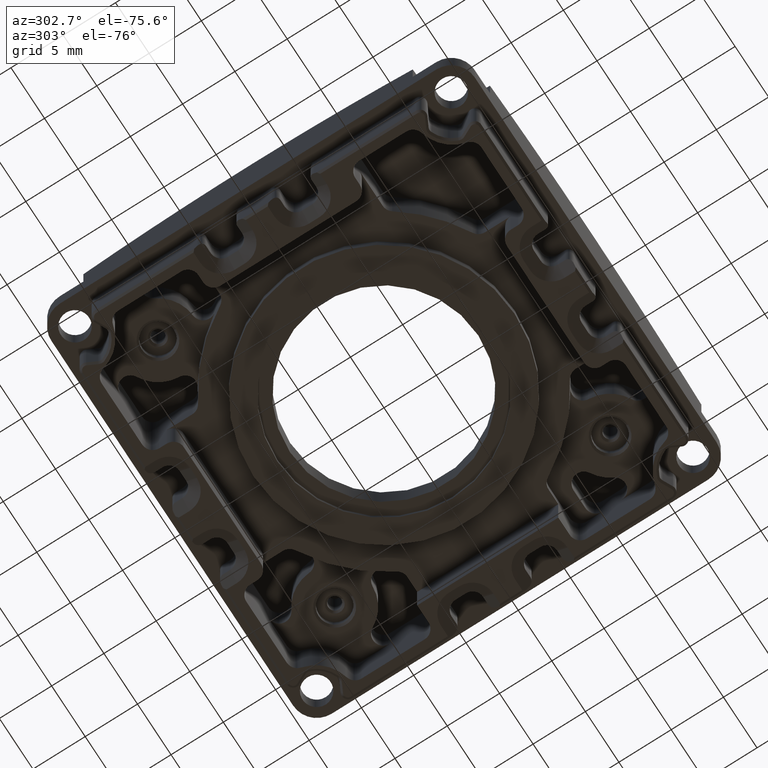
[diagram: clean part render]
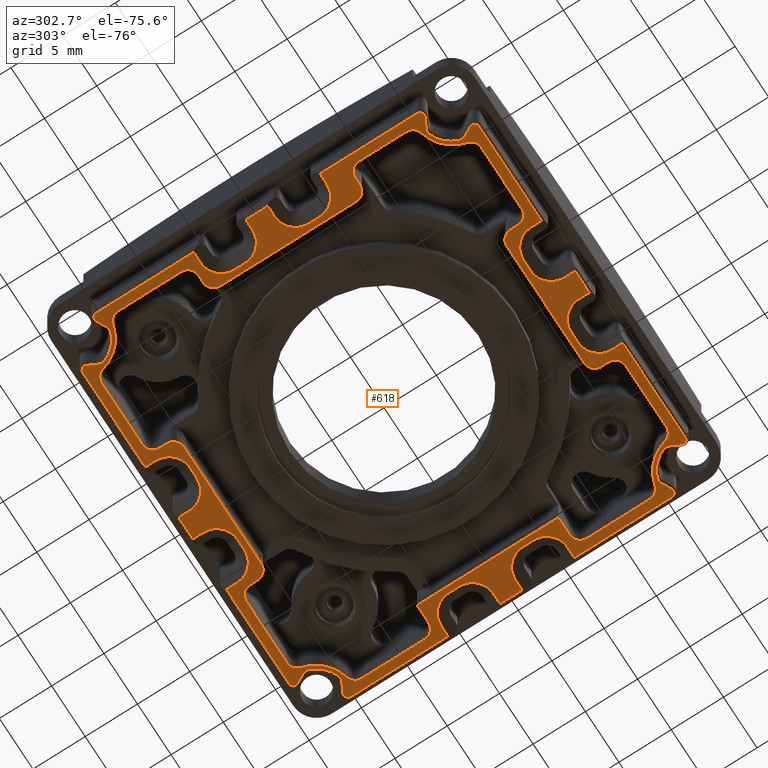
[diagram: same view with one face highlighted and labeled with its STEP entity id]
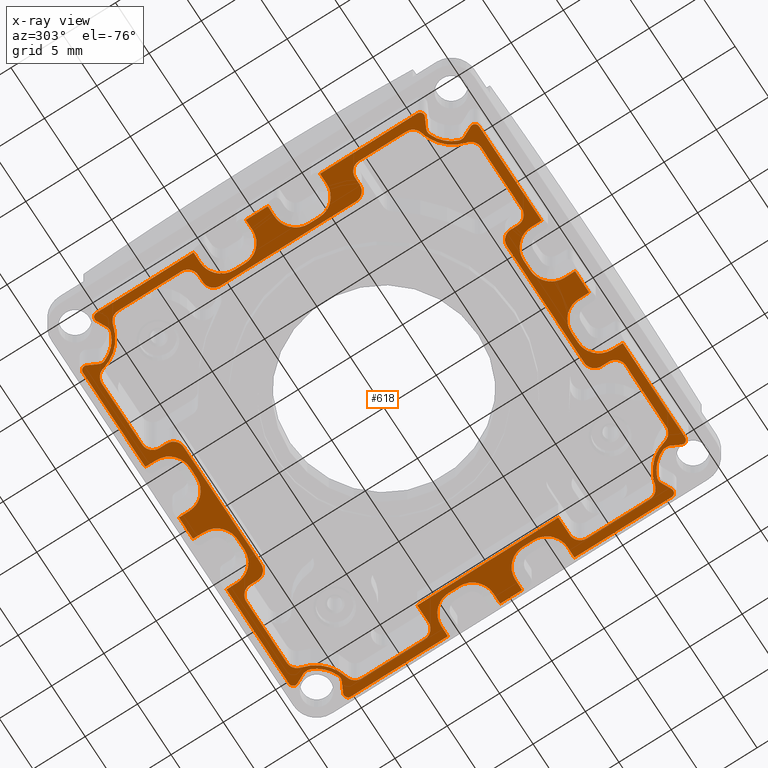
[diagram: x-ray of the same camera — body ghosted, the highlighted face saturated]
A machine part, auxiliary view. The second image highlights one B-rep face of the part: STEP entity #618.
The next image is the same camera in x-ray: the body ghosted, the highlighted face saturated — about 0% of this face is hidden behind the body in this view.
In plain terms, the highlighted planar face has unit normal (0, 0, -1).
Its self-contained STEP definition (entity closure, byte-faithful):
#618=ADVANCED_FACE('',(#1456,#1043),#4143,.T.);
#1043=FACE_OUTER_BOUND('',#1497,.F.);
#1456=FACE_BOUND('',#1496,.F.);
#1496=EDGE_LOOP('',(#2068,#2069,#2070,#2071,#2072,#2073,#2074,#2075,#2076,
#2077,#2078,#2079,#2080,#2081,#2082,#2083,#2084,#2085,#2086,#2087,#2088,
#2089,#2090,#2091,#2092,#2093,#2094,#2095,#2096,#2097,#2098,#2099,#2100,
#2101,#2102,#2103,#2104,#2105,#2106,#2107,#2108,#2109,#2110,#2111,#2112,
#2113));
#1497=EDGE_LOOP('',(#2114,#2115,#2116,#2117,#2118,#2119,#2120,#2121,#2122,
#2123,#2124,#2125,#2126,#2127,#2128,#2129,#2130,#2131,#2132,#2133,#2134,
#2135,#2136,#2137,#2138,#2139,#2140,#2141,#2142,#2143,#2144,#2145,#2146,
#2147,#2148,#2149,#2150,#2151,#2152,#2153,#2154,#2155,#2156,#2157,#2158,
#2159,#2160,#2161,#2162,#2163,#2164,#2165,#2166,#2167,#2168,#2169,#2170,
#2171,#2172,#2173,#2174,#2175,#2176,#2177,#2178,#2179,#2180,#2181,#2182,
#2183,#2184,#2185,#2186,#2187,#2188,#2189,#2190,#2191,#2192,#2193,#2194,
#2195,#2196,#2197,#2198,#2199,#2200,#2201,#2202,#2203,#2204,#2205,#2206,
#2207,#2208,#2209));
#2068=ORIENTED_EDGE('',*,*,#7302,.T.);
#2069=ORIENTED_EDGE('',*,*,#6932,.F.);
#2070=ORIENTED_EDGE('',*,*,#7297,.T.);
#2071=ORIENTED_EDGE('',*,*,#7296,.T.);
#2072=ORIENTED_EDGE('',*,*,#7295,.T.);
#2073=ORIENTED_EDGE('',*,*,#7294,.T.);
#2074=ORIENTED_EDGE('',*,*,#7293,.F.);
#2075=ORIENTED_EDGE('',*,*,#7292,.T.);
#2076=ORIENTED_EDGE('',*,*,#7291,.T.);
#2077=ORIENTED_EDGE('',*,*,#7290,.T.);
#2078=ORIENTED_EDGE('',*,*,#7298,.T.);
#2079=ORIENTED_EDGE('',*,*,#6933,.F.);
#2080=ORIENTED_EDGE('',*,*,#7299,.T.);
#2081=ORIENTED_EDGE('',*,*,#6934,.F.);
#2082=ORIENTED_EDGE('',*,*,#7271,.T.);
#2083=ORIENTED_EDGE('',*,*,#7270,.T.);
#2084=ORIENTED_EDGE('',*,*,#7269,.T.);
#2085=ORIENTED_EDGE('',*,*,#7268,.T.);
#2086=ORIENTED_EDGE('',*,*,#7267,.F.);
#2087=ORIENTED_EDGE('',*,*,#7266,.T.);
#2088=ORIENTED_EDGE('',*,*,#7265,.T.);
#2089=ORIENTED_EDGE('',*,*,#7264,.T.);
#2090=ORIENTED_EDGE('',*,*,#7263,.T.);
#2091=ORIENTED_EDGE('',*,*,#6935,.F.);
#2092=ORIENTED_EDGE('',*,*,#7300,.T.);
#2093=ORIENTED_EDGE('',*,*,#6936,.F.);
#2094=ORIENTED_EDGE('',*,*,#7280,.T.);
#2095=ORIENTED_EDGE('',*,*,#7279,.T.);
#2096=ORIENTED_EDGE('',*,*,#7278,.T.);
#2097=ORIENTED_EDGE('',*,*,#7277,.T.);
#2098=ORIENTED_EDGE('',*,*,#7276,.F.);
#2099=ORIENTED_EDGE('',*,*,#7275,.T.);
#2100=ORIENTED_EDGE('',*,*,#7274,.T.);
#2101=ORIENTED_EDGE('',*,*,#7273,.T.);
#2102=ORIENTED_EDGE('',*,*,#7272,.T.);
#2103=ORIENTED_EDGE('',*,*,#7301,.T.);
#2104=ORIENTED_EDGE('',*,*,#7289,.T.);
#2105=ORIENTED_EDGE('',*,*,#7288,.T.);
#2106=ORIENTED_EDGE('',*,*,#7287,.T.);
#2107=ORIENTED_EDGE('',*,*,#7286,.T.);
#2108=ORIENTED_EDGE('',*,*,#7285,.F.);
#2109=ORIENTED_EDGE('',*,*,#7284,.T.);
#2110=ORIENTED_EDGE('',*,*,#7283,.T.);
#2111=ORIENTED_EDGE('',*,*,#7282,.T.);
#2112=ORIENTED_EDGE('',*,*,#7281,.T.);
#2113=ORIENTED_EDGE('',*,*,#6931,.F.);
#2114=ORIENTED_EDGE('',*,*,#7309,.F.);
#2115=ORIENTED_EDGE('',*,*,#7312,.T.);
#2116=ORIENTED_EDGE('',*,*,#7311,.T.);
#2117=ORIENTED_EDGE('',*,*,#7313,.F.);
#2118=ORIENTED_EDGE('',*,*,#7316,.T.);
#2119=ORIENTED_EDGE('',*,*,#7315,.T.);
#2120=ORIENTED_EDGE('',*,*,#7317,.F.);
#2121=ORIENTED_EDGE('',*,*,#7307,.F.);
#2122=ORIENTED_EDGE('',*,*,#7319,.F.);
#2123=ORIENTED_EDGE('',*,*,#7322,.T.);
#2124=ORIENTED_EDGE('',*,*,#7321,.T.);
#2125=ORIENTED_EDGE('',*,*,#7323,.F.);
#2126=ORIENTED_EDGE('',*,*,#7326,.T.);
#2127=ORIENTED_EDGE('',*,*,#7325,.T.);
#2128=ORIENTED_EDGE('',*,*,#7327,.F.);
#2129=ORIENTED_EDGE('',*,*,#7189,.F.);
#2130=ORIENTED_EDGE('',*,*,#7191,.F.);
#2131=ORIENTED_EDGE('',*,*,#7193,.F.);
#2132=ORIENTED_EDGE('',*,*,#7195,.T.);
#2133=ORIENTED_EDGE('',*,*,#7197,.T.);
#2134=ORIENTED_EDGE('',*,*,#7199,.T.);
#2135=ORIENTED_EDGE('',*,*,#7201,.F.);
#2136=ORIENTED_EDGE('',*,*,#7203,.F.);
#2137=ORIENTED_EDGE('',*,*,#7205,.F.);
#2138=ORIENTED_EDGE('',*,*,#7329,.F.);
#2139=ORIENTED_EDGE('',*,*,#7332,.T.);
#2140=ORIENTED_EDGE('',*,*,#7331,.T.);
#2141=ORIENTED_EDGE('',*,*,#7333,.F.);
#2142=ORIENTED_EDGE('',*,*,#7336,.T.);
#2143=ORIENTED_EDGE('',*,*,#7335,.T.);
#2144=ORIENTED_EDGE('',*,*,#7337,.F.);
#2145=ORIENTED_EDGE('',*,*,#7303,.F.);
#2146=ORIENTED_EDGE('',*,*,#7339,.F.);
#2147=ORIENTED_EDGE('',*,*,#7342,.T.);
#2148=ORIENTED_EDGE('',*,*,#7341,.T.);
#2149=ORIENTED_EDGE('',*,*,#7343,.F.);
#2150=ORIENTED_EDGE('',*,*,#7346,.T.);
#2151=ORIENTED_EDGE('',*,*,#7345,.T.);
#2152=ORIENTED_EDGE('',*,*,#7347,.F.);
#2153=ORIENTED_EDGE('',*,*,#7207,.F.);
#2154=ORIENTED_EDGE('',*,*,#7209,.F.);
#2155=ORIENTED_EDGE('',*,*,#7211,.F.);
#2156=ORIENTED_EDGE('',*,*,#7213,.T.);
#2157=ORIENTED_EDGE('',*,*,#7215,.T.);
#2158=ORIENTED_EDGE('',*,*,#7217,.T.);
#2159=ORIENTED_EDGE('',*,*,#7219,.F.);
#2160=ORIENTED_EDGE('',*,*,#7221,.F.);
#2161=ORIENTED_EDGE('',*,*,#7223,.F.);
#2162=ORIENTED_EDGE('',*,*,#7359,.F.);
#2163=ORIENTED_EDGE('',*,*,#7362,.T.);
#2164=ORIENTED_EDGE('',*,*,#7361,.T.);
#2165=ORIENTED_EDGE('',*,*,#7363,.F.);
#2166=ORIENTED_EDGE('',*,*,#7366,.T.);
#2167=ORIENTED_EDGE('',*,*,#7365,.T.);
#2168=ORIENTED_EDGE('',*,*,#7367,.F.);
#2169=ORIENTED_EDGE('',*,*,#7305,.F.);
#2170=ORIENTED_EDGE('',*,*,#7349,.F.);
#2171=ORIENTED_EDGE('',*,*,#7352,.T.);
#2172=ORIENTED_EDGE('',*,*,#7351,.T.);
#2173=ORIENTED_EDGE('',*,*,#7353,.F.);
#2174=ORIENTED_EDGE('',*,*,#7356,.T.);
#2175=ORIENTED_EDGE('',*,*,#7355,.T.);
#2176=ORIENTED_EDGE('',*,*,#7357,.F.);
#2177=ORIENTED_EDGE('',*,*,#7245,.F.);
#2178=ORIENTED_EDGE('',*,*,#7247,.F.);
#2179=ORIENTED_EDGE('',*,*,#7249,.F.);
#2180=ORIENTED_EDGE('',*,*,#7251,.T.);
#2181=ORIENTED_EDGE('',*,*,#7253,.T.);
#2182=ORIENTED_EDGE('',*,*,#7255,.T.);
#2183=ORIENTED_EDGE('',*,*,#7257,.F.);
#2184=ORIENTED_EDGE('',*,*,#7259,.F.);
#2185=ORIENTED_EDGE('',*,*,#7261,.F.);
#2186=ORIENTED_EDGE('',*,*,#7369,.F.);
#2187=ORIENTED_EDGE('',*,*,#7372,.T.);
#2188=ORIENTED_EDGE('',*,*,#7371,.T.);
#2189=ORIENTED_EDGE('',*,*,#7373,.F.);
#2190=ORIENTED_EDGE('',*,*,#7376,.T.);
#2191=ORIENTED_EDGE('',*,*,#7375,.T.);
#2192=ORIENTED_EDGE('',*,*,#7377,.F.);
#2193=ORIENTED_EDGE('',*,*,#7243,.F.);
#2194=ORIENTED_EDGE('',*,*,#7379,.F.);
#2195=ORIENTED_EDGE('',*,*,#7382,.T.);
#2196=ORIENTED_EDGE('',*,*,#7381,.T.);
#2197=ORIENTED_EDGE('',*,*,#7383,.F.);
#2198=ORIENTED_EDGE('',*,*,#7386,.T.);
#2199=ORIENTED_EDGE('',*,*,#7385,.T.);
#2200=ORIENTED_EDGE('',*,*,#7387,.F.);
#2201=ORIENTED_EDGE('',*,*,#7225,.F.);
#2202=ORIENTED_EDGE('',*,*,#7227,.F.);
#2203=ORIENTED_EDGE('',*,*,#7229,.F.);
#2204=ORIENTED_EDGE('',*,*,#7231,.T.);
#2205=ORIENTED_EDGE('',*,*,#7233,.T.);
#2206=ORIENTED_EDGE('',*,*,#7235,.T.);
#2207=ORIENTED_EDGE('',*,*,#7237,.F.);
#2208=ORIENTED_EDGE('',*,*,#7239,.F.);
#2209=ORIENTED_EDGE('',*,*,#7241,.F.);
#4143=PLANE('',#10503);
#6539=CIRCLE('',#10108,1.);
#6540=CIRCLE('',#10109,1.);
#6541=CIRCLE('',#10110,1.);
#6542=CIRCLE('',#10111,1.);
#6543=CIRCLE('',#10112,1.);
#6544=CIRCLE('',#10113,1.);
#6642=CIRCLE('',#10211,0.400000000000003);
#6644=CIRCLE('',#10213,0.699999999999996);
#6646=CIRCLE('',#10215,2.95000000000001);
#6648=CIRCLE('',#10217,0.7);
#6650=CIRCLE('',#10219,0.400000000000001);
#6652=CIRCLE('',#10221,0.400000000000001);
#6654=CIRCLE('',#10223,0.699999999999999);
#6656=CIRCLE('',#10225,2.95000000000001);
#6658=CIRCLE('',#10227,0.700000000000004);
#6660=CIRCLE('',#10229,0.399999999999991);
#6662=CIRCLE('',#10231,0.399999999999989);
#6664=CIRCLE('',#10233,0.7);
#6666=CIRCLE('',#10235,2.94999999999984);
#6668=CIRCLE('',#10237,0.700000000000009);
#6670=CIRCLE('',#10239,0.400000000000008);
#6672=CIRCLE('',#10241,0.399999999999992);
#6674=CIRCLE('',#10243,0.699999999999985);
#6676=CIRCLE('',#10245,2.95000000000001);
#6678=CIRCLE('',#10247,0.700000000000003);
#6680=CIRCLE('',#10249,0.399999999999985);
#6682=CIRCLE('',#10251,1.);
#6683=CIRCLE('',#10252,1.);
#6684=CIRCLE('',#10253,3.59999999999998);
#6685=CIRCLE('',#10254,0.999999999999976);
#6686=CIRCLE('',#10255,1.);
#6687=CIRCLE('',#10256,1.);
#6688=CIRCLE('',#10257,1.);
#6689=CIRCLE('',#10258,3.59999999999996);
#6690=CIRCLE('',#10259,0.999999999999979);
#6691=CIRCLE('',#10260,1.);
#6692=CIRCLE('',#10261,1.);
#6693=CIRCLE('',#10262,1.);
#6694=CIRCLE('',#10263,3.60000000000001);
#6695=CIRCLE('',#10264,0.999999999999976);
#6696=CIRCLE('',#10265,1.);
#6697=CIRCLE('',#10266,1.);
#6698=CIRCLE('',#10267,1.);
#6699=CIRCLE('',#10268,3.59999999999999);
#6700=CIRCLE('',#10269,0.999999999999979);
#6701=CIRCLE('',#10270,1.);
#6702=CIRCLE('',#10271,2.);
#6703=CIRCLE('',#10272,2.);
#6704=CIRCLE('',#10273,2.);
#6705=CIRCLE('',#10274,2.);
#6706=CIRCLE('',#10275,2.);
#6707=CIRCLE('',#10276,2.);
#6708=CIRCLE('',#10277,2.);
#6709=CIRCLE('',#10278,2.);
#6710=CIRCLE('',#10279,2.);
#6711=CIRCLE('',#10280,2.);
#6712=CIRCLE('',#10281,2.);
#6713=CIRCLE('',#10282,2.);
#6714=CIRCLE('',#10283,2.);
#6715=CIRCLE('',#10284,2.);
#6716=CIRCLE('',#10285,2.);
#6717=CIRCLE('',#10286,2.);
#6718=CIRCLE('',#10287,2.);
#6719=CIRCLE('',#10288,2.);
#6720=CIRCLE('',#10289,2.);
#6721=CIRCLE('',#10290,2.);
#6722=CIRCLE('',#10291,2.);
#6723=CIRCLE('',#10292,2.);
#6724=CIRCLE('',#10293,2.);
#6725=CIRCLE('',#10294,2.);
#6726=CIRCLE('',#10295,2.);
#6727=CIRCLE('',#10296,2.);
#6728=CIRCLE('',#10297,2.);
#6729=CIRCLE('',#10298,2.);
#6730=CIRCLE('',#10299,2.);
#6731=CIRCLE('',#10300,2.);
#6732=CIRCLE('',#10301,2.);
#6733=CIRCLE('',#10302,2.);
#6931=EDGE_CURVE('',#10050,#10049,#6539,.T.);
#6932=EDGE_CURVE('',#10048,#10047,#6540,.T.);
#6933=EDGE_CURVE('',#10046,#10045,#6541,.T.);
#6934=EDGE_CURVE('',#10044,#10043,#6542,.T.);
#6935=EDGE_CURVE('',#10042,#10041,#6543,.T.);
#6936=EDGE_CURVE('',#10040,#10039,#6544,.T.);
#7189=EDGE_CURVE('',#9774,#10074,#8140,.T.);
#7191=EDGE_CURVE('',#9772,#9774,#6642,.T.);
#7193=EDGE_CURVE('',#9770,#9772,#8142,.T.);
#7195=EDGE_CURVE('',#9770,#9768,#6644,.T.);
#7197=EDGE_CURVE('',#9768,#9766,#6646,.T.);
#7199=EDGE_CURVE('',#9766,#9764,#6648,.T.);
#7201=EDGE_CURVE('',#9762,#9764,#8144,.T.);
#7203=EDGE_CURVE('',#9760,#9762,#6650,.T.);
#7205=EDGE_CURVE('',#10071,#9760,#8146,.T.);
#7207=EDGE_CURVE('',#9758,#10070,#8148,.T.);
#7209=EDGE_CURVE('',#9756,#9758,#6652,.T.);
#7211=EDGE_CURVE('',#9754,#9756,#8150,.T.);
#7213=EDGE_CURVE('',#9754,#9752,#6654,.T.);
#7215=EDGE_CURVE('',#9752,#9750,#6656,.T.);
#7217=EDGE_CURVE('',#9750,#9748,#6658,.T.);
#7219=EDGE_CURVE('',#9746,#9748,#8152,.T.);
#7221=EDGE_CURVE('',#9744,#9746,#6660,.T.);
#7223=EDGE_CURVE('',#10067,#9744,#8154,.T.);
#7225=EDGE_CURVE('',#9742,#10064,#8156,.T.);
#7227=EDGE_CURVE('',#9740,#9742,#6662,.T.);
#7229=EDGE_CURVE('',#9738,#9740,#8158,.T.);
#7231=EDGE_CURVE('',#9738,#9736,#6664,.T.);
#7233=EDGE_CURVE('',#9736,#9734,#6666,.T.);
#7235=EDGE_CURVE('',#9734,#9732,#6668,.T.);
#7237=EDGE_CURVE('',#9730,#9732,#8160,.T.);
#7239=EDGE_CURVE('',#9728,#9730,#6670,.T.);
#7241=EDGE_CURVE('',#10065,#9728,#8162,.T.);
#7243=EDGE_CURVE('',#10059,#10062,#8164,.T.);
#7245=EDGE_CURVE('',#9726,#10058,#8166,.T.);
#7247=EDGE_CURVE('',#9724,#9726,#6672,.T.);
#7249=EDGE_CURVE('',#9722,#9724,#8168,.T.);
#7251=EDGE_CURVE('',#9722,#9720,#6674,.T.);
#7253=EDGE_CURVE('',#9720,#9718,#6676,.T.);
#7255=EDGE_CURVE('',#9718,#9716,#6678,.T.);
#7257=EDGE_CURVE('',#9714,#9716,#8170,.T.);
#7259=EDGE_CURVE('',#9712,#9714,#6680,.T.);
#7261=EDGE_CURVE('',#10055,#9712,#8172,.T.);
#7263=EDGE_CURVE('',#9710,#10041,#8174,.T.);
#7264=EDGE_CURVE('',#9709,#9710,#6682,.T.);
#7265=EDGE_CURVE('',#9708,#9709,#8175,.T.);
#7266=EDGE_CURVE('',#9707,#9708,#6683,.T.);
#7267=EDGE_CURVE('',#9707,#9706,#6684,.T.);
#7268=EDGE_CURVE('',#9705,#9706,#6685,.T.);
#7269=EDGE_CURVE('',#9704,#9705,#8176,.T.);
#7270=EDGE_CURVE('',#9703,#9704,#6686,.T.);
#7271=EDGE_CURVE('',#10044,#9703,#8177,.T.);
#7272=EDGE_CURVE('',#9702,#9991,#8178,.T.);
#7273=EDGE_CURVE('',#9701,#9702,#6687,.T.);
#7274=EDGE_CURVE('',#9700,#9701,#8179,.T.);
#7275=EDGE_CURVE('',#9699,#9700,#6688,.T.);
#7276=EDGE_CURVE('',#9699,#9698,#6689,.T.);
#7277=EDGE_CURVE('',#9697,#9698,#6690,.T.);
#7278=EDGE_CURVE('',#9696,#9697,#8180,.T.);
#7279=EDGE_CURVE('',#9695,#9696,#6691,.T.);
#7280=EDGE_CURVE('',#10040,#9695,#8181,.T.);
#7281=EDGE_CURVE('',#9694,#10049,#8182,.T.);
#7282=EDGE_CURVE('',#9693,#9694,#6692,.T.);
#7283=EDGE_CURVE('',#9692,#9693,#8183,.T.);
#7284=EDGE_CURVE('',#9691,#9692,#6693,.T.);
#7285=EDGE_CURVE('',#9691,#9690,#6694,.T.);
#7286=EDGE_CURVE('',#9689,#9690,#6695,.T.);
#7287=EDGE_CURVE('',#9688,#9689,#8184,.T.);
#7288=EDGE_CURVE('',#9687,#9688,#6696,.T.);
#7289=EDGE_CURVE('',#9975,#9687,#8185,.T.);
#7290=EDGE_CURVE('',#9686,#9685,#6697,.T.);
#7291=EDGE_CURVE('',#9684,#9686,#8186,.T.);
#7292=EDGE_CURVE('',#9683,#9684,#6698,.T.);
#7293=EDGE_CURVE('',#9683,#9682,#6699,.T.);
#7294=EDGE_CURVE('',#9681,#9682,#6700,.T.);
#7295=EDGE_CURVE('',#9680,#9681,#8187,.T.);
#7296=EDGE_CURVE('',#9679,#9680,#6701,.T.);
#7297=EDGE_CURVE('',#10048,#9679,#8188,.T.);
#7298=EDGE_CURVE('',#9685,#10045,#8189,.T.);
#7299=EDGE_CURVE('',#10046,#10043,#8190,.T.);
#7300=EDGE_CURVE('',#10042,#10039,#8191,.T.);
#7301=EDGE_CURVE('',#9991,#9975,#8192,.T.);
#7302=EDGE_CURVE('',#10050,#10047,#8193,.T.);
#7303=EDGE_CURVE('',#9935,#9938,#8194,.T.);
#7305=EDGE_CURVE('',#9933,#9932,#8196,.T.);
#7307=EDGE_CURVE('',#9927,#9930,#8198,.T.);
#7309=EDGE_CURVE('',#9678,#10065,#8200,.T.);
#7311=EDGE_CURVE('',#9676,#9675,#6702,.T.);
#7312=EDGE_CURVE('',#9678,#9676,#6703,.T.);
#7313=EDGE_CURVE('',#9674,#9675,#8202,.T.);
#7315=EDGE_CURVE('',#9671,#9670,#6704,.T.);
#7316=EDGE_CURVE('',#9674,#9671,#6705,.T.);
#7317=EDGE_CURVE('',#9930,#9670,#8204,.T.);
#7319=EDGE_CURVE('',#9668,#9927,#8206,.T.);
#7321=EDGE_CURVE('',#9666,#9665,#6706,.T.);
#7322=EDGE_CURVE('',#9668,#9666,#6707,.T.);
#7323=EDGE_CURVE('',#9664,#9665,#8208,.T.);
#7325=EDGE_CURVE('',#9661,#9660,#6708,.T.);
#7326=EDGE_CURVE('',#9664,#9661,#6709,.T.);
#7327=EDGE_CURVE('',#10074,#9660,#8210,.T.);
#7329=EDGE_CURVE('',#9658,#10071,#8212,.T.);
#7331=EDGE_CURVE('',#9656,#9655,#6710,.T.);
#7332=EDGE_CURVE('',#9658,#9656,#6711,.T.);
#7333=EDGE_CURVE('',#9654,#9655,#8214,.T.);
#7335=EDGE_CURVE('',#9651,#9650,#6712,.T.);
#7336=EDGE_CURVE('',#9654,#9651,#6713,.T.);
#7337=EDGE_CURVE('',#9938,#9650,#8216,.T.);
#7339=EDGE_CURVE('',#9648,#9935,#8218,.T.);
#7341=EDGE_CURVE('',#9646,#9645,#6714,.T.);
#7342=EDGE_CURVE('',#9648,#9646,#6715,.T.);
#7343=EDGE_CURVE('',#9644,#9645,#8220,.T.);
#7345=EDGE_CURVE('',#9641,#9640,#6716,.T.);
#7346=EDGE_CURVE('',#9644,#9641,#6717,.T.);
#7347=EDGE_CURVE('',#10070,#9640,#8222,.T.);
#7349=EDGE_CURVE('',#9638,#9933,#8224,.T.);
#7351=EDGE_CURVE('',#9636,#9635,#6718,.T.);
#7352=EDGE_CURVE('',#9638,#9636,#6719,.T.);
#7353=EDGE_CURVE('',#9634,#9635,#8226,.T.);
#7355=EDGE_CURVE('',#9631,#9630,#6720,.T.);
#7356=EDGE_CURVE('',#9634,#9631,#6721,.T.);
#7357=EDGE_CURVE('',#10058,#9630,#8228,.T.);
#7359=EDGE_CURVE('',#9628,#10067,#8230,.T.);
#7361=EDGE_CURVE('',#9626,#9625,#6722,.T.);
#7362=EDGE_CURVE('',#9628,#9626,#6723,.T.);
#7363=EDGE_CURVE('',#9624,#9625,#8232,.T.);
#7365=EDGE_CURVE('',#9621,#9620,#6724,.T.);
#7366=EDGE_CURVE('',#9624,#9621,#6725,.T.);
#7367=EDGE_CURVE('',#9932,#9620,#8234,.T.);
#7369=EDGE_CURVE('',#9618,#10055,#8236,.T.);
#7371=EDGE_CURVE('',#9616,#9615,#6726,.T.);
#7372=EDGE_CURVE('',#9618,#9616,#6727,.T.);
#7373=EDGE_CURVE('',#9614,#9615,#8238,.T.);
#7375=EDGE_CURVE('',#9611,#9610,#6728,.T.);
#7376=EDGE_CURVE('',#9614,#9611,#6729,.T.);
#7377=EDGE_CURVE('',#10062,#9610,#8240,.T.);
#7379=EDGE_CURVE('',#9608,#10059,#8242,.T.);
#7381=EDGE_CURVE('',#9606,#9605,#6730,.T.);
#7382=EDGE_CURVE('',#9608,#9606,#6731,.T.);
#7383=EDGE_CURVE('',#9604,#9605,#8244,.T.);
#7385=EDGE_CURVE('',#9601,#9600,#6732,.T.);
#7386=EDGE_CURVE('',#9604,#9601,#6733,.T.);
#7387=EDGE_CURVE('',#10064,#9600,#8246,.T.);
#8140=LINE('',#14549,#8816);
#8142=LINE('',#14553,#8818);
#8144=LINE('',#14561,#8820);
#8146=LINE('',#14565,#8822);
#8148=LINE('',#14567,#8824);
#8150=LINE('',#14571,#8826);
#8152=LINE('',#14579,#8828);
#8154=LINE('',#14583,#8830);
#8156=LINE('',#14585,#8832);
#8158=LINE('',#14589,#8834);
#8160=LINE('',#14597,#8836);
#8162=LINE('',#14601,#8838);
#8164=LINE('',#14603,#8840);
#8166=LINE('',#14605,#8842);
#8168=LINE('',#14609,#8844);
#8170=LINE('',#14617,#8846);
#8172=LINE('',#14621,#8848);
#8174=LINE('',#14623,#8850);
#8175=LINE('',#14625,#8851);
#8176=LINE('',#14629,#8852);
#8177=LINE('',#14631,#8853);
#8178=LINE('',#14632,#8854);
#8179=LINE('',#14634,#8855);
#8180=LINE('',#14638,#8856);
#8181=LINE('',#14640,#8857);
#8182=LINE('',#14641,#8858);
#8183=LINE('',#14643,#8859);
#8184=LINE('',#14647,#8860);
#8185=LINE('',#14649,#8861);
#8186=LINE('',#14651,#8862);
#8187=LINE('',#14655,#8863);
#8188=LINE('',#14657,#8864);
#8189=LINE('',#14658,#8865);
#8190=LINE('',#14659,#8866);
#8191=LINE('',#14660,#8867);
#8192=LINE('',#14661,#8868);
#8193=LINE('',#14662,#8869);
#8194=LINE('',#14663,#8870);
#8196=LINE('',#14665,#8872);
#8198=LINE('',#14667,#8874);
#8200=LINE('',#14669,#8876);
#8202=LINE('',#14673,#8878);
#8204=LINE('',#14677,#8880);
#8206=LINE('',#14679,#8882);
#8208=LINE('',#14683,#8884);
#8210=LINE('',#14687,#8886);
#8212=LINE('',#14689,#8888);
#8214=LINE('',#14693,#8890);
#8216=LINE('',#14697,#8892);
#8218=LINE('',#14699,#8894);
#8220=LINE('',#14703,#8896);
#8222=LINE('',#14707,#8898);
#8224=LINE('',#14709,#8900);
#8226=LINE('',#14713,#8902);
#8228=LINE('',#14717,#8904);
#8230=LINE('',#14719,#8906);
#8232=LINE('',#14723,#8908);
#8234=LINE('',#14727,#8910);
#8236=LINE('',#14729,#8912);
#8238=LINE('',#14733,#8914);
#8240=LINE('',#14737,#8916);
#8242=LINE('',#14739,#8918);
#8244=LINE('',#14743,#8920);
#8246=LINE('',#14747,#8922);
#8816=VECTOR('',#11246,9.30267434322743);
#8818=VECTOR('',#11252,0.97267966461553);
#8820=VECTOR('',#11266,0.972676440001319);
#8822=VECTOR('',#11272,9.30267559193981);
#8824=VECTOR('',#11274,9.30266774657838);
#8826=VECTOR('',#11280,0.972680123974665);
#8828=VECTOR('',#11294,0.972676440015015);
#8830=VECTOR('',#11300,9.30267597342437);
#8832=VECTOR('',#11302,9.30267351013232);
#8834=VECTOR('',#11308,0.972680583032126);
#8836=VECTOR('',#11322,0.972676439801598);
#8838=VECTOR('',#11328,9.30267536401269);
#8840=VECTOR('',#11330,2.10000025288196);
#8842=VECTOR('',#11332,9.30267414455527);
#8844=VECTOR('',#11338,0.972679664596222);
#8846=VECTOR('',#11352,0.972676440019943);
#8848=VECTOR('',#11358,9.30266952803468);
#8850=VECTOR('',#11360,0.699996302263017);
#8851=VECTOR('',#11363,6.03345796620374);
#8852=VECTOR('',#11370,6.03345044536141);
#8853=VECTOR('',#11373,0.700000140915748);
#8854=VECTOR('',#11374,1.70000014091537);
#8855=VECTOR('',#11377,6.03345044536141);
#8856=VECTOR('',#11384,6.03345796620374);
#8857=VECTOR('',#11387,0.699996302263187);
#8858=VECTOR('',#11388,0.699996302263134);
#8859=VECTOR('',#11391,6.03345796620374);
#8860=VECTOR('',#11398,6.03345044536141);
#8861=VECTOR('',#11401,1.70000014091538);
#8862=VECTOR('',#11404,4.53345783833197);
#8863=VECTOR('',#11411,6.03345796620374);
#8864=VECTOR('',#11414,0.699996302263262);
#8865=VECTOR('',#11415,0.700000140909125);
#8866=VECTOR('',#11416,12.9999997471424);
#8867=VECTOR('',#11417,11.4999997757606);
#8868=VECTOR('',#11418,13.5000071401054);
#8869=VECTOR('',#11419,11.4999997757597);
#8870=VECTOR('',#11420,2.09999974713246);
#8872=VECTOR('',#11422,2.09999974716234);
#8874=VECTOR('',#11424,2.09999974714513);
#8876=VECTOR('',#11426,1.00000000032655);
#8878=VECTOR('',#11432,1.00000000000834);
#8880=VECTOR('',#11438,1.00000000024625);
#8882=VECTOR('',#11440,1.00000000024763);
#8884=VECTOR('',#11446,1.00000000001612);
#8886=VECTOR('',#11452,1.00000000027258);
#8888=VECTOR('',#11454,1.00000000216465);
#8890=VECTOR('',#11460,0.999999999980929);
#8892=VECTOR('',#11466,1.00000000221623);
#8894=VECTOR('',#11468,0.999999997099987);
#8896=VECTOR('',#11474,0.999999999994035);
#8898=VECTOR('',#11480,0.999999997105451);
#8900=VECTOR('',#11482,0.999992603788094);
#8902=VECTOR('',#11488,1.00000000000508);
#8904=VECTOR('',#11494,0.999992603921356);
#8906=VECTOR('',#11496,0.999992603958642);
#8908=VECTOR('',#11502,1.00000000000565);
#8910=VECTOR('',#11508,0.999992603937187);
#8912=VECTOR('',#11510,1.00000000296018);
#8914=VECTOR('',#11516,1.00000000001811);
#8916=VECTOR('',#11522,1.00000000290495);
#8918=VECTOR('',#11524,0.999999997747999);
#8920=VECTOR('',#11530,1.00000000003163);
#8922=VECTOR('',#11536,0.999999997781657);
#9600=VERTEX_POINT('',#13436);
#9601=VERTEX_POINT('',#13437);
#9604=VERTEX_POINT('',#13440);
#9605=VERTEX_POINT('',#13441);
#9606=VERTEX_POINT('',#13442);
#9608=VERTEX_POINT('',#13444);
#9610=VERTEX_POINT('',#13446);
#9611=VERTEX_POINT('',#13447);
#9614=VERTEX_POINT('',#13450);
#9615=VERTEX_POINT('',#13451);
#9616=VERTEX_POINT('',#13452);
#9618=VERTEX_POINT('',#13454);
#9620=VERTEX_POINT('',#13456);
#9621=VERTEX_POINT('',#13457);
#9624=VERTEX_POINT('',#13460);
#9625=VERTEX_POINT('',#13461);
#9626=VERTEX_POINT('',#13462);
#9628=VERTEX_POINT('',#13464);
#9630=VERTEX_POINT('',#13466);
#9631=VERTEX_POINT('',#13467);
#9634=VERTEX_POINT('',#13470);
#9635=VERTEX_POINT('',#13471);
#9636=VERTEX_POINT('',#13472);
#9638=VERTEX_POINT('',#13474);
#9640=VERTEX_POINT('',#13476);
#9641=VERTEX_POINT('',#13477);
#9644=VERTEX_POINT('',#13480);
#9645=VERTEX_POINT('',#13481);
#9646=VERTEX_POINT('',#13482);
#9648=VERTEX_POINT('',#13484);
#9650=VERTEX_POINT('',#13486);
#9651=VERTEX_POINT('',#13487);
#9654=VERTEX_POINT('',#13490);
#9655=VERTEX_POINT('',#13491);
#9656=VERTEX_POINT('',#13492);
#9658=VERTEX_POINT('',#13494);
#9660=VERTEX_POINT('',#13496);
#9661=VERTEX_POINT('',#13497);
#9664=VERTEX_POINT('',#13500);
#9665=VERTEX_POINT('',#13501);
#9666=VERTEX_POINT('',#13502);
#9668=VERTEX_POINT('',#13504);
#9670=VERTEX_POINT('',#13506);
#9671=VERTEX_POINT('',#13507);
#9674=VERTEX_POINT('',#13510);
#9675=VERTEX_POINT('',#13511);
#9676=VERTEX_POINT('',#13512);
#9678=VERTEX_POINT('',#13514);
#9679=VERTEX_POINT('',#13515);
#9680=VERTEX_POINT('',#13516);
#9681=VERTEX_POINT('',#13517);
#9682=VERTEX_POINT('',#13518);
#9683=VERTEX_POINT('',#13519);
#9684=VERTEX_POINT('',#13520);
#9685=VERTEX_POINT('',#13521);
#9686=VERTEX_POINT('',#13522);
#9687=VERTEX_POINT('',#13523);
#9688=VERTEX_POINT('',#13524);
#9689=VERTEX_POINT('',#13525);
#9690=VERTEX_POINT('',#13526);
#9691=VERTEX_POINT('',#13527);
#9692=VERTEX_POINT('',#13528);
#9693=VERTEX_POINT('',#13529);
#9694=VERTEX_POINT('',#13530);
#9695=VERTEX_POINT('',#13531);
#9696=VERTEX_POINT('',#13532);
#9697=VERTEX_POINT('',#13533);
#9698=VERTEX_POINT('',#13534);
#9699=VERTEX_POINT('',#13535);
#9700=VERTEX_POINT('',#13536);
#9701=VERTEX_POINT('',#13537);
#9702=VERTEX_POINT('',#13538);
#9703=VERTEX_POINT('',#13539);
#9704=VERTEX_POINT('',#13540);
#9705=VERTEX_POINT('',#13541);
#9706=VERTEX_POINT('',#13542);
#9707=VERTEX_POINT('',#13543);
#9708=VERTEX_POINT('',#13544);
#9709=VERTEX_POINT('',#13545);
#9710=VERTEX_POINT('',#13546);
#9712=VERTEX_POINT('',#13548);
#9714=VERTEX_POINT('',#13550);
#9716=VERTEX_POINT('',#13552);
#9718=VERTEX_POINT('',#13554);
#9720=VERTEX_POINT('',#13556);
#9722=VERTEX_POINT('',#13558);
#9724=VERTEX_POINT('',#13560);
#9726=VERTEX_POINT('',#13562);
#9728=VERTEX_POINT('',#13564);
#9730=VERTEX_POINT('',#13566);
#9732=VERTEX_POINT('',#13568);
#9734=VERTEX_POINT('',#13570);
#9736=VERTEX_POINT('',#13572);
#9738=VERTEX_POINT('',#13574);
#9740=VERTEX_POINT('',#13576);
#9742=VERTEX_POINT('',#13578);
#9744=VERTEX_POINT('',#13580);
#9746=VERTEX_POINT('',#13582);
#9748=VERTEX_POINT('',#13584);
#9750=VERTEX_POINT('',#13586);
#9752=VERTEX_POINT('',#13588);
#9754=VERTEX_POINT('',#13590);
#9756=VERTEX_POINT('',#13592);
#9758=VERTEX_POINT('',#13594);
#9760=VERTEX_POINT('',#13596);
#9762=VERTEX_POINT('',#13598);
#9764=VERTEX_POINT('',#13600);
#9766=VERTEX_POINT('',#13602);
#9768=VERTEX_POINT('',#13604);
#9770=VERTEX_POINT('',#13606);
#9772=VERTEX_POINT('',#13608);
#9774=VERTEX_POINT('',#13610);
#9927=VERTEX_POINT('',#13763);
#9930=VERTEX_POINT('',#13766);
#9932=VERTEX_POINT('',#13768);
#9933=VERTEX_POINT('',#13769);
#9935=VERTEX_POINT('',#13771);
#9938=VERTEX_POINT('',#13774);
#9975=VERTEX_POINT('',#13811);
#9991=VERTEX_POINT('',#13827);
#10039=VERTEX_POINT('',#13875);
#10040=VERTEX_POINT('',#13876);
#10041=VERTEX_POINT('',#13877);
#10042=VERTEX_POINT('',#13878);
#10043=VERTEX_POINT('',#13879);
#10044=VERTEX_POINT('',#13880);
#10045=VERTEX_POINT('',#13881);
#10046=VERTEX_POINT('',#13882);
#10047=VERTEX_POINT('',#13883);
#10048=VERTEX_POINT('',#13884);
#10049=VERTEX_POINT('',#13885);
#10050=VERTEX_POINT('',#13886);
#10055=VERTEX_POINT('',#13891);
#10058=VERTEX_POINT('',#13894);
#10059=VERTEX_POINT('',#13895);
#10062=VERTEX_POINT('',#13898);
#10064=VERTEX_POINT('',#13900);
#10065=VERTEX_POINT('',#13901);
#10067=VERTEX_POINT('',#13903);
#10070=VERTEX_POINT('',#13906);
#10071=VERTEX_POINT('',#13907);
#10074=VERTEX_POINT('',#13910);
#10108=AXIS2_PLACEMENT_3D('',#13925,#10935,#10936);
#10109=AXIS2_PLACEMENT_3D('',#13926,#10937,#10938);
#10110=AXIS2_PLACEMENT_3D('',#13927,#10939,#10940);
#10111=AXIS2_PLACEMENT_3D('',#13928,#10941,#10942);
#10112=AXIS2_PLACEMENT_3D('',#13929,#10943,#10944);
#10113=AXIS2_PLACEMENT_3D('',#13930,#10945,#10946);
#10211=AXIS2_PLACEMENT_3D('',#14551,#11248,#11249);
#10213=AXIS2_PLACEMENT_3D('',#14555,#11254,#11255);
#10215=AXIS2_PLACEMENT_3D('',#14557,#11258,#11259);
#10217=AXIS2_PLACEMENT_3D('',#14559,#11262,#11263);
#10219=AXIS2_PLACEMENT_3D('',#14563,#11268,#11269);
#10221=AXIS2_PLACEMENT_3D('',#14569,#11276,#11277);
#10223=AXIS2_PLACEMENT_3D('',#14573,#11282,#11283);
#10225=AXIS2_PLACEMENT_3D('',#14575,#11286,#11287);
#10227=AXIS2_PLACEMENT_3D('',#14577,#11290,#11291);
#10229=AXIS2_PLACEMENT_3D('',#14581,#11296,#11297);
#10231=AXIS2_PLACEMENT_3D('',#14587,#11304,#11305);
#10233=AXIS2_PLACEMENT_3D('',#14591,#11310,#11311);
#10235=AXIS2_PLACEMENT_3D('',#14593,#11314,#11315);
#10237=AXIS2_PLACEMENT_3D('',#14595,#11318,#11319);
#10239=AXIS2_PLACEMENT_3D('',#14599,#11324,#11325);
#10241=AXIS2_PLACEMENT_3D('',#14607,#11334,#11335);
#10243=AXIS2_PLACEMENT_3D('',#14611,#11340,#11341);
#10245=AXIS2_PLACEMENT_3D('',#14613,#11344,#11345);
#10247=AXIS2_PLACEMENT_3D('',#14615,#11348,#11349);
#10249=AXIS2_PLACEMENT_3D('',#14619,#11354,#11355);
#10251=AXIS2_PLACEMENT_3D('',#14624,#11361,#11362);
#10252=AXIS2_PLACEMENT_3D('',#14626,#11364,#11365);
#10253=AXIS2_PLACEMENT_3D('',#14627,#11366,#11367);
#10254=AXIS2_PLACEMENT_3D('',#14628,#11368,#11369);
#10255=AXIS2_PLACEMENT_3D('',#14630,#11371,#11372);
#10256=AXIS2_PLACEMENT_3D('',#14633,#11375,#11376);
#10257=AXIS2_PLACEMENT_3D('',#14635,#11378,#11379);
#10258=AXIS2_PLACEMENT_3D('',#14636,#11380,#11381);
#10259=AXIS2_PLACEMENT_3D('',#14637,#11382,#11383);
#10260=AXIS2_PLACEMENT_3D('',#14639,#11385,#11386);
#10261=AXIS2_PLACEMENT_3D('',#14642,#11389,#11390);
#10262=AXIS2_PLACEMENT_3D('',#14644,#11392,#11393);
#10263=AXIS2_PLACEMENT_3D('',#14645,#11394,#11395);
#10264=AXIS2_PLACEMENT_3D('',#14646,#11396,#11397);
#10265=AXIS2_PLACEMENT_3D('',#14648,#11399,#11400);
#10266=AXIS2_PLACEMENT_3D('',#14650,#11402,#11403);
#10267=AXIS2_PLACEMENT_3D('',#14652,#11405,#11406);
#10268=AXIS2_PLACEMENT_3D('',#14653,#11407,#11408);
#10269=AXIS2_PLACEMENT_3D('',#14654,#11409,#11410);
#10270=AXIS2_PLACEMENT_3D('',#14656,#11412,#11413);
#10271=AXIS2_PLACEMENT_3D('',#14671,#11428,#11429);
#10272=AXIS2_PLACEMENT_3D('',#14672,#11430,#11431);
#10273=AXIS2_PLACEMENT_3D('',#14675,#11434,#11435);
#10274=AXIS2_PLACEMENT_3D('',#14676,#11436,#11437);
#10275=AXIS2_PLACEMENT_3D('',#14681,#11442,#11443);
#10276=AXIS2_PLACEMENT_3D('',#14682,#11444,#11445);
#10277=AXIS2_PLACEMENT_3D('',#14685,#11448,#11449);
#10278=AXIS2_PLACEMENT_3D('',#14686,#11450,#11451);
#10279=AXIS2_PLACEMENT_3D('',#14691,#11456,#11457);
#10280=AXIS2_PLACEMENT_3D('',#14692,#11458,#11459);
#10281=AXIS2_PLACEMENT_3D('',#14695,#11462,#11463);
#10282=AXIS2_PLACEMENT_3D('',#14696,#11464,#11465);
#10283=AXIS2_PLACEMENT_3D('',#14701,#11470,#11471);
#10284=AXIS2_PLACEMENT_3D('',#14702,#11472,#11473);
#10285=AXIS2_PLACEMENT_3D('',#14705,#11476,#11477);
#10286=AXIS2_PLACEMENT_3D('',#14706,#11478,#11479);
#10287=AXIS2_PLACEMENT_3D('',#14711,#11484,#11485);
#10288=AXIS2_PLACEMENT_3D('',#14712,#11486,#11487);
#10289=AXIS2_PLACEMENT_3D('',#14715,#11490,#11491);
#10290=AXIS2_PLACEMENT_3D('',#14716,#11492,#11493);
#10291=AXIS2_PLACEMENT_3D('',#14721,#11498,#11499);
#10292=AXIS2_PLACEMENT_3D('',#14722,#11500,#11501);
#10293=AXIS2_PLACEMENT_3D('',#14725,#11504,#11505);
#10294=AXIS2_PLACEMENT_3D('',#14726,#11506,#11507);
#10295=AXIS2_PLACEMENT_3D('',#14731,#11512,#11513);
#10296=AXIS2_PLACEMENT_3D('',#14732,#11514,#11515);
#10297=AXIS2_PLACEMENT_3D('',#14735,#11518,#11519);
#10298=AXIS2_PLACEMENT_3D('',#14736,#11520,#11521);
#10299=AXIS2_PLACEMENT_3D('',#14741,#11526,#11527);
#10300=AXIS2_PLACEMENT_3D('',#14742,#11528,#11529);
#10301=AXIS2_PLACEMENT_3D('',#14745,#11532,#11533);
#10302=AXIS2_PLACEMENT_3D('',#14746,#11534,#11535);
#10503=AXIS2_PLACEMENT_3D('',#15402,#12391,#12392);
#10935=DIRECTION('',(0.,0.,-1.));
#10936=DIRECTION('',(0.,1.,0.));
#10937=DIRECTION('',(0.,0.,-1.));
#10938=DIRECTION('',(-1.,0.,0.));
#10939=DIRECTION('',(0.,0.,-1.));
#10940=DIRECTION('',(1.,0.,0.));
#10941=DIRECTION('',(0.,0.,-1.));
#10942=DIRECTION('',(0.,1.,0.));
#10943=DIRECTION('',(0.,0.,-1.));
#10944=DIRECTION('',(0.,-1.,0.));
#10945=DIRECTION('',(0.,0.,-1.));
#10946=DIRECTION('',(1.,0.,0.));
#11246=DIRECTION('',(-1.,0.,0.));
#11248=DIRECTION('',(0.,0.,-1.));
#11249=DIRECTION('',(0.894442320393867,0.447183335432387,0.));
#11252=DIRECTION('',(0.44718333543243,-0.894442320393846,0.));
#11254=DIRECTION('',(0.,0.,-1.));
#11255=DIRECTION('',(-0.894442320393866,-0.447183335432389,0.));
#11258=DIRECTION('',(0.,0.,-1.));
#11259=DIRECTION('',(-0.93262463407239,0.360848017760028,0.));
#11262=DIRECTION('',(0.,0.,-1.));
#11263=DIRECTION('',(-0.360847180761108,0.932624957920793,0.));
#11266=DIRECTION('',(-0.89444108555961,0.447185805301272,0.));
#11268=DIRECTION('',(0.,0.,-1.));
#11269=DIRECTION('',(1.,0.,0.));
#11272=DIRECTION('',(0.,-1.,0.));
#11274=DIRECTION('',(0.,-1.,0.));
#11276=DIRECTION('',(0.,0.,-1.));
#11277=DIRECTION('',(-0.447183335444439,0.894442320387841,0.));
#11280=DIRECTION('',(0.894442320387826,0.447183335444471,0.));
#11282=DIRECTION('',(0.,0.,-1.));
#11283=DIRECTION('',(0.447183335444502,-0.89444232038781,0.));
#11286=DIRECTION('',(0.,0.,-1.));
#11287=DIRECTION('',(-0.36084801776002,-0.932624634072393,0.));
#11290=DIRECTION('',(0.,0.,-1.));
#11291=DIRECTION('',(-0.932624957920805,-0.360847180761075,0.));
#11294=DIRECTION('',(-0.447185805310418,-0.894441085555037,0.));
#11296=DIRECTION('',(0.,0.,-1.));
#11297=DIRECTION('',(0.,1.,0.));
#11300=DIRECTION('',(1.,0.,0.));
#11302=DIRECTION('',(0.,1.,0.));
#11304=DIRECTION('',(0.,0.,-1.));
#11305=DIRECTION('',(0.447183335447287,-0.894442320386418,0.));
#11308=DIRECTION('',(-0.894442320387008,-0.447183335446107,0.));
#11310=DIRECTION('',(0.,0.,-1.));
#11311=DIRECTION('',(-0.447183335446069,0.894442320387027,0.));
#11314=DIRECTION('',(0.,0.,-1.));
#11315=DIRECTION('',(0.360848017759341,0.932624634072655,0.));
#11318=DIRECTION('',(0.,0.,-1.));
#11319=DIRECTION('',(0.932624957920895,0.360847180760843,0.));
#11322=DIRECTION('',(0.447185805282143,0.894441085569173,0.));
#11324=DIRECTION('',(0.,0.,-1.));
#11325=DIRECTION('',(0.,-1.,0.));
#11328=DIRECTION('',(-1.,0.,0.));
#11330=DIRECTION('',(0.,1.,0.));
#11332=DIRECTION('',(1.,0.,0.));
#11334=DIRECTION('',(0.,0.,-1.));
#11335=DIRECTION('',(-0.894442320388027,-0.447183335444068,0.));
#11338=DIRECTION('',(-0.447183335444039,0.894442320388042,0.));
#11340=DIRECTION('',(0.,0.,-1.));
#11341=DIRECTION('',(0.894442320388062,0.447183335443998,0.));
#11344=DIRECTION('',(0.,0.,-1.));
#11345=DIRECTION('',(0.932624634072391,-0.360848017760024,0.));
#11348=DIRECTION('',(0.,0.,-1.));
#11349=DIRECTION('',(0.360847180761101,-0.932624957920795,0.));
#11352=DIRECTION('',(0.894441085564392,-0.447185805291707,0.));
#11354=DIRECTION('',(0.,0.,-1.));
#11355=DIRECTION('',(-1.,0.,0.));
#11358=DIRECTION('',(0.,1.,0.));
#11360=DIRECTION('',(0.,-1.,0.));
#11361=DIRECTION('',(0.,0.,-1.));
#11362=DIRECTION('',(0.,1.,0.));
#11363=DIRECTION('',(1.,0.,0.));
#11364=DIRECTION('',(0.,0.,-1.));
#11365=DIRECTION('',(-0.970987453659483,0.239130434775404,0.));
#11366=DIRECTION('',(0.,0.,-1.));
#11367=DIRECTION('',(0.970987453659693,-0.239130434774552,0.));
#11368=DIRECTION('',(0.,0.,-1.));
#11369=DIRECTION('',(-1.,0.,0.));
#11370=DIRECTION('',(0.,1.,0.));
#11371=DIRECTION('',(0.,0.,-1.));
#11372=DIRECTION('',(0.,-1.,0.));
#11373=DIRECTION('',(-1.,0.,0.));
#11374=DIRECTION('',(-1.,0.,0.));
#11375=DIRECTION('',(0.,0.,-1.));
#11376=DIRECTION('',(1.,0.,0.));
#11377=DIRECTION('',(0.,-1.,0.));
#11378=DIRECTION('',(0.,0.,-1.));
#11379=DIRECTION('',(0.239130434803133,0.970987453652654,0.));
#11380=DIRECTION('',(0.,0.,-1.));
#11381=DIRECTION('',(-0.239130434803067,-0.97098745365267,0.));
#11382=DIRECTION('',(0.,0.,-1.));
#11383=DIRECTION('',(0.,1.,0.));
#11384=DIRECTION('',(1.,0.,0.));
#11385=DIRECTION('',(0.,0.,-1.));
#11386=DIRECTION('',(-1.,0.,0.));
#11387=DIRECTION('',(0.,1.,0.));
#11388=DIRECTION('',(0.,1.,0.));
#11389=DIRECTION('',(0.,0.,-1.));
#11390=DIRECTION('',(0.,-1.,0.));
#11391=DIRECTION('',(-1.,0.,0.));
#11392=DIRECTION('',(0.,0.,-1.));
#11393=DIRECTION('',(0.970987453659483,-0.239130434775404,0.));
#11394=DIRECTION('',(0.,0.,-1.));
#11395=DIRECTION('',(-0.970987453659692,0.239130434774554,0.));
#11396=DIRECTION('',(0.,0.,-1.));
#11397=DIRECTION('',(1.,0.,0.));
#11398=DIRECTION('',(0.,-1.,0.));
#11399=DIRECTION('',(0.,0.,-1.));
#11400=DIRECTION('',(0.,1.,0.));
#11401=DIRECTION('',(1.,0.,0.));
#11402=DIRECTION('',(0.,0.,-1.));
#11403=DIRECTION('',(-1.,0.,0.));
#11404=DIRECTION('',(0.,1.,0.));
#11405=DIRECTION('',(0.,0.,-1.));
#11406=DIRECTION('',(-0.23913043480308,-0.970987453652667,0.));
#11407=DIRECTION('',(0.,0.,-1.));
#11408=DIRECTION('',(0.239130434803038,0.970987453652677,0.));
#11409=DIRECTION('',(0.,0.,-1.));
#11410=DIRECTION('',(0.,-1.,0.));
#11411=DIRECTION('',(-1.,0.,0.));
#11412=DIRECTION('',(0.,0.,-1.));
#11413=DIRECTION('',(1.,0.,0.));
#11414=DIRECTION('',(0.,-1.,0.));
#11415=DIRECTION('',(1.,0.,0.));
#11416=DIRECTION('',(0.,1.,0.));
#11417=DIRECTION('',(1.,0.,0.));
#11418=DIRECTION('',(0.,-1.,0.));
#11419=DIRECTION('',(-1.,0.,0.));
#11420=DIRECTION('',(0.,-1.,0.));
#11422=DIRECTION('',(1.,0.,0.));
#11424=DIRECTION('',(-1.,0.,0.));
#11426=DIRECTION('',(0.,-1.,0.));
#11428=DIRECTION('',(0.,0.,-1.));
#11429=DIRECTION('',(-0.866025403781162,0.500000000005676,0.));
#11430=DIRECTION('',(0.,0.,-1.));
#11431=DIRECTION('',(-1.,0.,0.));
#11432=DIRECTION('',(-1.,0.,0.));
#11434=DIRECTION('',(0.,0.,-1.));
#11435=DIRECTION('',(0.500000000021523,0.866025403772012,0.));
#11436=DIRECTION('',(0.,0.,-1.));
#11437=DIRECTION('',(0.,1.,0.));
#11438=DIRECTION('',(0.,1.,0.));
#11440=DIRECTION('',(0.,-1.,0.));
#11442=DIRECTION('',(0.,0.,-1.));
#11443=DIRECTION('',(-0.866025403783851,0.500000000001019,0.));
#11444=DIRECTION('',(0.,0.,-1.));
#11445=DIRECTION('',(-1.,0.,0.));
#11446=DIRECTION('',(-1.,0.,0.));
#11448=DIRECTION('',(0.,0.,-1.));
#11449=DIRECTION('',(0.50000000001441,0.866025403776119,0.));
#11450=DIRECTION('',(0.,0.,-1.));
#11451=DIRECTION('',(0.,1.,0.));
#11452=DIRECTION('',(0.,1.,0.));
#11454=DIRECTION('',(1.,0.,0.));
#11456=DIRECTION('',(0.,0.,-1.));
#11457=DIRECTION('',(-0.5,-0.866025403784439,0.));
#11458=DIRECTION('',(0.,0.,-1.));
#11459=DIRECTION('',(0.,-1.,0.));
#11460=DIRECTION('',(0.,-1.,0.));
#11462=DIRECTION('',(0.,0.,-1.));
#11463=DIRECTION('',(-0.86602540378444,0.499999999999998,0.));
#11464=DIRECTION('',(0.,0.,-1.));
#11465=DIRECTION('',(-1.,0.,0.));
#11466=DIRECTION('',(-1.,0.,0.));
#11468=DIRECTION('',(1.,0.,0.));
#11470=DIRECTION('',(0.,0.,-1.));
#11471=DIRECTION('',(-0.500000000001508,-0.866025403783568,0.));
#11472=DIRECTION('',(0.,0.,-1.));
#11473=DIRECTION('',(0.,-1.,0.));
#11474=DIRECTION('',(0.,-1.,0.));
#11476=DIRECTION('',(0.,0.,-1.));
#11477=DIRECTION('',(-0.866025403786866,0.499999999995795,0.));
#11478=DIRECTION('',(0.,0.,-1.));
#11479=DIRECTION('',(-1.,0.,0.));
#11480=DIRECTION('',(-1.,0.,0.));
#11482=DIRECTION('',(0.,1.,0.));
#11484=DIRECTION('',(0.,0.,-1.));
#11485=DIRECTION('',(0.866025403787352,-0.499999999994954,0.));
#11486=DIRECTION('',(0.,0.,-1.));
#11487=DIRECTION('',(1.,0.,0.));
#11488=DIRECTION('',(1.,0.,0.));
#11490=DIRECTION('',(0.,0.,-1.));
#11491=DIRECTION('',(-0.499999999994358,-0.866025403787696,0.));
#11492=DIRECTION('',(0.,0.,-1.));
#11493=DIRECTION('',(0.,-1.,0.));
#11494=DIRECTION('',(0.,-1.,0.));
#11496=DIRECTION('',(0.,1.,0.));
#11498=DIRECTION('',(0.,0.,-1.));
#11499=DIRECTION('',(0.866025403777331,-0.500000000012311,0.));
#11500=DIRECTION('',(0.,0.,-1.));
#11501=DIRECTION('',(1.,0.,0.));
#11502=DIRECTION('',(1.,0.,0.));
#11504=DIRECTION('',(0.,0.,-1.));
#11505=DIRECTION('',(-0.499999999987109,-0.866025403791881,0.));
#11506=DIRECTION('',(0.,0.,-1.));
#11507=DIRECTION('',(0.,-1.,0.));
#11508=DIRECTION('',(0.,-1.,0.));
#11510=DIRECTION('',(-1.,0.,0.));
#11512=DIRECTION('',(0.,0.,-1.));
#11513=DIRECTION('',(0.50000000000495,0.866025403781581,0.));
#11514=DIRECTION('',(0.,0.,-1.));
#11515=DIRECTION('',(0.,1.,0.));
#11516=DIRECTION('',(0.,1.,0.));
#11518=DIRECTION('',(0.,0.,-1.));
#11519=DIRECTION('',(0.866025403781753,-0.500000000004652,0.));
#11520=DIRECTION('',(0.,0.,-1.));
#11521=DIRECTION('',(1.,0.,0.));
#11522=DIRECTION('',(1.,0.,0.));
#11524=DIRECTION('',(-1.,0.,0.));
#11526=DIRECTION('',(0.,0.,-1.));
#11527=DIRECTION('',(0.500000000005575,0.86602540378122,0.));
#11528=DIRECTION('',(0.,0.,-1.));
#11529=DIRECTION('',(0.,1.,0.));
#11530=DIRECTION('',(0.,1.,0.));
#11532=DIRECTION('',(0.,0.,-1.));
#11533=DIRECTION('',(0.866025403780793,-0.500000000006314,0.));
#11534=DIRECTION('',(0.,0.,-1.));
#11535=DIRECTION('',(1.,0.,0.));
#11536=DIRECTION('',(1.,0.,0.));
#12391=DIRECTION('',(0.,0.,-1.));
#12392=DIRECTION('',(-1.,0.,0.));
#13436=CARTESIAN_POINT('',(-17.9499999318062,-6.05000101000647,-4.35));
#13437=CARTESIAN_POINT('',(-16.21794912423,-5.0500010100191,-4.35));
#13440=CARTESIAN_POINT('',(-15.9499999317916,-4.05000101001936,-4.35));
#13441=CARTESIAN_POINT('',(-15.9499999317852,-3.05000100998774,-4.35));
#13442=CARTESIAN_POINT('',(-16.949999931774,-1.31795020241242,-4.35));
#13444=CARTESIAN_POINT('',(-17.9499999318436,-1.05000100997486,-4.35));
#13446=CARTESIAN_POINT('',(-17.949999926691,1.04999924287253,-4.35));
#13447=CARTESIAN_POINT('',(-16.2179491191168,2.04999924286322,-4.35));
#13450=CARTESIAN_POINT('',(-15.9499999266803,3.04999924286108,-4.35));
#13451=CARTESIAN_POINT('',(-15.9499999266746,4.04999924287918,-4.35));
#13452=CARTESIAN_POINT('',(-16.9499999266647,5.78205005045378,-4.35));
#13454=CARTESIAN_POINT('',(-17.9499999266369,6.04999924289062,-4.35));
#13456=CARTESIAN_POINT('',(1.04999984465696,17.9500000084578,-4.34999999999998));
#13457=CARTESIAN_POINT('',(2.04999984468273,16.2179492009038,-4.34999999999998));
#13460=CARTESIAN_POINT('',(3.04999984462854,15.9500000084876,-4.35));
#13461=CARTESIAN_POINT('',(4.04999984463417,15.9500000084734,-4.34999999999998));
#13462=CARTESIAN_POINT('',(5.78205065221725,16.9500000084488,-4.34999999999998));
#13464=CARTESIAN_POINT('',(6.04999984466259,17.950000008451,-4.35));
#13466=CARTESIAN_POINT('',(-6.04999990247036,17.950000008475,-4.34999999999999));
#13467=CARTESIAN_POINT('',(-5.04999990245908,16.2179492009126,-4.34999999999999));
#13470=CARTESIAN_POINT('',(-4.04999990245869,15.950000008488,-4.35));
#13471=CARTESIAN_POINT('',(-3.04999990245362,15.9500000084938,-4.34999999999999));
#13472=CARTESIAN_POINT('',(-1.31794909489058,16.9500000085039,-4.34999999999999));
#13474=CARTESIAN_POINT('',(-1.04999990246528,17.9500000086038,-4.35));
#13476=CARTESIAN_POINT('',(17.9500000733105,6.04999918868385,-4.34999999999997));
#13477=CARTESIAN_POINT('',(16.2179492657465,5.04999918867544,-4.34999999999997));
#13480=CARTESIAN_POINT('',(15.9500000733202,4.04999918868733,-4.34999999999999));
#13481=CARTESIAN_POINT('',(15.9500000733185,3.04999918869329,-4.34999999999997));
#13482=CARTESIAN_POINT('',(16.9500000733155,1.31794838112268,-4.34999999999997));
#13484=CARTESIAN_POINT('',(17.9500000733079,1.04999918868981,-4.34999999999998));
#13486=CARTESIAN_POINT('',(17.9500000682077,-1.05000055844795,-4.34999999999997));
#13487=CARTESIAN_POINT('',(16.2179492606388,-2.05000055844796,-4.34999999999998));
#13490=CARTESIAN_POINT('',(15.9500000682077,-3.05000055844796,-4.34999999999998));
#13491=CARTESIAN_POINT('',(15.9500000682077,-4.05000055842889,-4.34999999999998));
#13492=CARTESIAN_POINT('',(16.9500000682077,-5.78205136599776,-4.34999999999998));
#13494=CARTESIAN_POINT('',(17.9500000682313,-6.05000055842889,-4.34999999999998));
#13496=CARTESIAN_POINT('',(6.04999984462961,-17.9499999915433,-4.34999999999998));
#13497=CARTESIAN_POINT('',(5.04999984465844,-16.2179491839578,-4.34999999999999));
#13500=CARTESIAN_POINT('',(4.04999984463196,-15.94999999151,-4.34999999999998));
#13501=CARTESIAN_POINT('',(3.04999984461585,-15.9499999915088,-4.34999999999999));
#13502=CARTESIAN_POINT('',(1.3179490370458,-16.9499999915068,-4.34999999999999));
#13504=CARTESIAN_POINT('',(1.0499998446135,-17.9499999915602,-4.34999999999998));
#13506=CARTESIAN_POINT('',(-1.04999990248109,-17.9499999915622,-4.34999999999999));
#13507=CARTESIAN_POINT('',(-2.04999990243805,-16.2179491839685,-4.34999999999999));
#13510=CARTESIAN_POINT('',(-3.04999990246798,-15.9499999915125,-4.34999999999998));
#13511=CARTESIAN_POINT('',(-4.04999990247633,-15.949999991506,-4.34999999999999));
#13512=CARTESIAN_POINT('',(-5.78205071005176,-16.9499999914946,-4.34999999999999));
#13514=CARTESIAN_POINT('',(-6.04999990248944,-17.9499999914832,-4.34999999999998));
#13515=CARTESIAN_POINT('',(-6.74999988791153,-17.1499963022339,-4.34999999999999));
#13516=CARTESIAN_POINT('',(-7.74999988791153,-18.1499963022177,-4.34999999999999));
#13517=CARTESIAN_POINT('',(-13.7834578541153,-18.1499963022458,-4.34999999999999));
#13518=CARTESIAN_POINT('',(-14.7544453077719,-17.3891267370221,-4.34999999999999));
#13519=CARTESIAN_POINT('',(-17.3891305756554,-14.7544414690625,-4.34999999999999));
#13520=CARTESIAN_POINT('',(-18.1500001408523,-13.783454015416,-4.34999999999999));
#13521=CARTESIAN_POINT('',(-17.1500001408961,-8.2499961770963,-4.34999999999999));
#13522=CARTESIAN_POINT('',(-18.1500001409001,-9.24999617709438,-4.34999999999999));
#13523=CARTESIAN_POINT('',(17.1500001409154,-6.7500035700528,-4.34999999999998));
#13524=CARTESIAN_POINT('',(18.1500001409176,-7.75000357006637,-4.34999999999998));
#13525=CARTESIAN_POINT('',(18.1500001408528,-13.7834540154217,-4.34999999999998));
#13526=CARTESIAN_POINT('',(17.3891305756559,-14.7544414690621,-4.34999999999998));
#13527=CARTESIAN_POINT('',(14.7544453077722,-17.3891267370225,-4.34999999999998));
#13528=CARTESIAN_POINT('',(13.7834578541158,-18.1499963022454,-4.34999999999998));
#13529=CARTESIAN_POINT('',(7.74999988791201,-18.1499963022175,-4.34999999999998));
#13530=CARTESIAN_POINT('',(6.74999988791201,-17.1499963022499,-4.34999999999998));
#13531=CARTESIAN_POINT('',(6.74999988791199,17.1499963022337,-4.34999999999999));
#13532=CARTESIAN_POINT('',(7.74999988791199,18.1499963022175,-4.34999999999999));
#13533=CARTESIAN_POINT('',(13.7834578541157,18.1499963022454,-4.34999999999999));
#13534=CARTESIAN_POINT('',(14.7544453077724,17.3891267370217,-4.35));
#13535=CARTESIAN_POINT('',(17.3891305756559,14.7544414690621,-4.35));
#13536=CARTESIAN_POINT('',(18.1500001408528,13.7834540154155,-4.34999999999998));
#13537=CARTESIAN_POINT('',(18.1500001409178,7.75000357006633,-4.34999999999998));
#13538=CARTESIAN_POINT('',(17.1500001409154,6.75000357005259,-4.34999999999998));
#13539=CARTESIAN_POINT('',(-17.1500001409156,6.75000357005234,-4.35));
#13540=CARTESIAN_POINT('',(-18.1500001409178,7.75000357006587,-4.35));
#13541=CARTESIAN_POINT('',(-18.1500001408532,13.7834540154212,-4.35));
#13542=CARTESIAN_POINT('',(-17.3891305756563,14.7544414690616,-4.35));
#13543=CARTESIAN_POINT('',(-14.7544453077726,17.3891267370221,-4.35));
#13544=CARTESIAN_POINT('',(-13.7834578541162,18.1499963022451,-4.35));
#13545=CARTESIAN_POINT('',(-7.74999988791248,18.1499963022173,-4.34999999999999));
#13546=CARTESIAN_POINT('',(-6.74999988791246,17.1499963022497,-4.34999999999999));
#13548=CARTESIAN_POINT('',(-18.9499999295987,15.3526687709441,-4.35));
#13550=CARTESIAN_POINT('',(-18.371125607482,15.7104452051699,-4.35));
#13552=CARTESIAN_POINT('',(-17.5011238365691,15.275478108052,-4.35));
#13554=CARTESIAN_POINT('',(-16.9355007463452,15.2487493974091,-4.35));
#13556=CARTESIAN_POINT('',(-15.2487572550568,16.9354913812735,-4.35));
#13558=CARTESIAN_POINT('',(-15.2754848384548,17.5011134220273,-4.35));
#13560=CARTESIAN_POINT('',(-15.7104509751876,18.371119278223,-4.35));
#13562=CARTESIAN_POINT('',(-15.3526740470321,18.9499926124006,-4.35));
#13564=CARTESIAN_POINT('',(-15.3526752665135,-18.9499999917889,-4.35));
#13566=CARTESIAN_POINT('',(-15.7104517007403,-18.3711256696761,-4.35));
#13568=CARTESIAN_POINT('',(-15.2754846037292,-17.5011238989534,-4.35));
#13570=CARTESIAN_POINT('',(-15.2487558930874,-16.9355008087323,-4.35));
#13572=CARTESIAN_POINT('',(-16.9354978769526,-15.248757317443,-4.35));
#13574=CARTESIAN_POINT('',(-17.5011199177072,-15.2754849008421,-4.35));
#13576=CARTESIAN_POINT('',(-18.3711265953893,-15.7104514482858,-4.35));
#13578=CARTESIAN_POINT('',(-18.9499999295671,-15.3526745201315,-4.35));
#13580=CARTESIAN_POINT('',(15.3526758180982,18.9499926124039,-4.34999999999997));
#13582=CARTESIAN_POINT('',(15.7104522523199,18.3711182902798,-4.34999999999997));
#13584=CARTESIAN_POINT('',(15.2754851551865,17.5011165193814,-4.34999999999997));
#13586=CARTESIAN_POINT('',(15.2487564445412,16.9354934291528,-4.34999999999997));
#13588=CARTESIAN_POINT('',(16.9354984284056,15.2487499378644,-4.34999999999997));
#13590=CARTESIAN_POINT('',(17.5011204691598,15.2754775212626,-4.34999999999997));
#13592=CARTESIAN_POINT('',(18.3711267362429,15.7104438634222,-4.34999999999997));
#13594=CARTESIAN_POINT('',(18.9500000704207,15.3526669352671,-4.34999999999997));
#13596=CARTESIAN_POINT('',(18.9500000704003,-15.3526761503568,-4.34999999999997));
#13598=CARTESIAN_POINT('',(18.3711257482798,-15.7104525845807,-4.34999999999998));
#13600=CARTESIAN_POINT('',(17.5011239773887,-15.2754854874621,-4.34999999999998));
#13602=CARTESIAN_POINT('',(16.9355008871624,-15.248756776818,-4.34999999999998));
#13604=CARTESIAN_POINT('',(15.248757395874,-16.9354987606824,-4.34999999999998));
#13606=CARTESIAN_POINT('',(15.275484979268,-17.501120801428,-4.34999999999998));
#13608=CARTESIAN_POINT('',(15.710451115998,-18.3711266576467,-4.34999999999998));
#13610=CARTESIAN_POINT('',(15.3526741878404,-18.9499999918197,-4.34999999999998));
#13763=CARTESIAN_POINT('',(1.04999984463919,-18.9499999918078,-4.34999999999999));
#13766=CARTESIAN_POINT('',(-1.04999990250595,-18.9499999918085,-4.34999999999999));
#13768=CARTESIAN_POINT('',(1.04999984464208,18.949992612395,-4.34999999999998));
#13769=CARTESIAN_POINT('',(-1.04999990252027,18.9499926123919,-4.34999999999999));
#13771=CARTESIAN_POINT('',(18.9500000704079,1.0499991886845,-4.34999999999997));
#13774=CARTESIAN_POINT('',(18.950000070424,-1.05000055844795,-4.34999999999997));
#13811=CARTESIAN_POINT('',(15.45,-6.75000357005271,-4.34999999999998));
#13827=CARTESIAN_POINT('',(15.45,6.75000357005268,-4.34999999999998));
#13875=CARTESIAN_POINT('',(5.74999988788008,15.45,-4.35));
#13876=CARTESIAN_POINT('',(6.74999988788008,16.4499999999544,-4.35));
#13877=CARTESIAN_POINT('',(-6.74999988788055,16.4499999999544,-4.35));
#13878=CARTESIAN_POINT('',(-5.74999988788055,15.4499999999999,-4.35));
#13879=CARTESIAN_POINT('',(-15.45,5.75000357005242,-4.35));
#13880=CARTESIAN_POINT('',(-16.4499999999999,6.75000357005241,-4.35));
#13881=CARTESIAN_POINT('',(-16.449999999991,-8.24999617708999,-4.35));
#13882=CARTESIAN_POINT('',(-15.45,-7.24999617708998,-4.35));
#13883=CARTESIAN_POINT('',(-5.74999988787961,-15.4500000000001,-4.34999999999999));
#13884=CARTESIAN_POINT('',(-6.74999988787962,-16.4499999999545,-4.34999999999999));
#13885=CARTESIAN_POINT('',(6.7499998878801,-16.4499999999545,-4.34999999999998));
#13886=CARTESIAN_POINT('',(5.7499998878801,-15.4500000000001,-4.34999999999998));
#13891=CARTESIAN_POINT('',(-18.9499999295971,6.04999924290943,-4.35));
#13894=CARTESIAN_POINT('',(-6.04999990247687,18.9499926123963,-4.34999999999999));
#13895=CARTESIAN_POINT('',(-18.9499999295916,-1.05000101000405,-4.35));
#13898=CARTESIAN_POINT('',(-18.949999929596,1.0499992428779,-4.35));
#13900=CARTESIAN_POINT('',(-18.9499999295879,-6.05000100999918,-4.35));
#13901=CARTESIAN_POINT('',(-6.0499999025008,-18.9499999918098,-4.34999999999999));
#13903=CARTESIAN_POINT('',(6.04999984467381,18.9499926124096,-4.34999999999998));
#13906=CARTESIAN_POINT('',(18.950000070416,6.0499991886887,-4.34999999999997));
#13907=CARTESIAN_POINT('',(18.9500000703959,-6.0500005584171,-4.34999999999997));
#13910=CARTESIAN_POINT('',(6.04999984461297,-18.9499999918159,-4.34999999999998));
#13925=CARTESIAN_POINT('',(5.7499998878801,-16.4500000000001,-4.34999999999998));
#13926=CARTESIAN_POINT('',(-5.74999988787962,-16.45,-4.34999999999999));
#13927=CARTESIAN_POINT('',(-16.45,-7.24999617709,-4.35));
#13928=CARTESIAN_POINT('',(-16.45,5.75000357005242,-4.35000000000001));
#13929=CARTESIAN_POINT('',(-5.74999988788054,16.4499999999999,-4.35000000000001));
#13930=CARTESIAN_POINT('',(5.74999988788008,16.45,-4.35000000000001));
#14549=CARTESIAN_POINT('',(15.3526741878404,-18.9499999918197,-4.34999999999998));
#14551=CARTESIAN_POINT('',(15.3526741878405,-18.5499999918197,-4.34999999999998));
#14553=CARTESIAN_POINT('',(15.2754849792679,-17.5011208014281,-4.34999999999998));
#14555=CARTESIAN_POINT('',(15.9015946035437,-17.1880924666254,-4.34999999999998));
#14557=CARTESIAN_POINT('',(18.0000000704076,-18.0000004026844,-4.34999999999998));
#14559=CARTESIAN_POINT('',(17.1880939136951,-15.9015942473626,-4.34999999999998));
#14561=CARTESIAN_POINT('',(18.3711257482798,-15.7104525845807,-4.34999999999998));
#14563=CARTESIAN_POINT('',(18.5500000704003,-15.3526761503568,-4.34999999999998));
#14565=CARTESIAN_POINT('',(18.9500000703959,-6.0500005584171,-4.34999999999997));
#14567=CARTESIAN_POINT('',(18.9500000704207,15.3526669352671,-4.34999999999997));
#14569=CARTESIAN_POINT('',(18.5500000704207,15.3526669352671,-4.34999999999997));
#14571=CARTESIAN_POINT('',(17.5011204691599,15.2754775212626,-4.34999999999997));
#14573=CARTESIAN_POINT('',(17.1880921343487,15.9015871455341,-4.34999999999997));
#14575=CARTESIAN_POINT('',(18.0000000704076,17.999992612398,-4.34999999999997));
#14577=CARTESIAN_POINT('',(15.9015939150858,17.1880864556856,-4.34999999999997));
#14579=CARTESIAN_POINT('',(15.7104522523199,18.3711182902798,-4.34999999999997));
#14581=CARTESIAN_POINT('',(15.3526758180979,18.549992612404,-4.34999999999997));
#14583=CARTESIAN_POINT('',(6.04999984467381,18.9499926124096,-4.34999999999998));
#14585=CARTESIAN_POINT('',(-18.9499999295671,-15.3526745201315,-4.35));
#14587=CARTESIAN_POINT('',(-18.5499999295671,-15.3526745201306,-4.35));
#14589=CARTESIAN_POINT('',(-17.5011199177072,-15.2754849008421,-4.35));
#14591=CARTESIAN_POINT('',(-17.1880915828949,-15.901594525113,-4.35));
#14593=CARTESIAN_POINT('',(-17.9999995189539,-17.9999999919768,-4.35));
#14595=CARTESIAN_POINT('',(-15.9015933636321,-17.1880938352649,-4.35));
#14597=CARTESIAN_POINT('',(-15.7104517007403,-18.3711256696761,-4.35));
#14599=CARTESIAN_POINT('',(-15.3526752665126,-18.5499999917889,-4.35));
#14601=CARTESIAN_POINT('',(-6.0499999025008,-18.9499999918098,-4.34999999999999));
#14603=CARTESIAN_POINT('',(-18.9499999295915,-1.05000101000405,-4.35));
#14605=CARTESIAN_POINT('',(-15.3526740470321,18.9499926124006,-4.35));
#14607=CARTESIAN_POINT('',(-15.3526740470323,18.5499926124006,-4.35));
#14609=CARTESIAN_POINT('',(-15.2754848384548,17.5011134220273,-4.35));
#14611=CARTESIAN_POINT('',(-15.9015944627265,17.1880850872165,-4.35));
#14613=CARTESIAN_POINT('',(-17.9999999295904,17.9999930232755,-4.35));
#14615=CARTESIAN_POINT('',(-17.188093772878,15.9015868679537,-4.35));
#14617=CARTESIAN_POINT('',(-18.371125607482,15.7104452051699,-4.35));
#14619=CARTESIAN_POINT('',(-18.5499999295987,15.3526687709442,-4.35));
#14621=CARTESIAN_POINT('',(-18.9499999295971,6.04999924290944,-4.35));
#14623=CARTESIAN_POINT('',(-6.74999988791246,17.1499963022174,-4.34999999999999));
#14624=CARTESIAN_POINT('',(-7.74999988791246,17.1499963022173,-4.35000000000002));
#14625=CARTESIAN_POINT('',(-13.7834578541162,18.1499963022451,-4.35));
#14626=CARTESIAN_POINT('',(-13.7834578541136,17.1499963022451,-4.35000000000002));
#14627=CARTESIAN_POINT('',(-18.2500001409473,18.2499963022112,-4.35000000000002));
#14628=CARTESIAN_POINT('',(-17.1500001408533,13.7834540154089,-4.35000000000002));
#14629=CARTESIAN_POINT('',(-18.1500001409183,7.75000357006587,-4.35));
#14630=CARTESIAN_POINT('',(-17.1500001409176,7.75000357005199,-4.35000000000001));
#14631=CARTESIAN_POINT('',(-16.4499999999999,6.75000357005241,-4.35));
#14632=CARTESIAN_POINT('',(17.1500001409154,6.75000357005295,-4.34999999999997));
#14633=CARTESIAN_POINT('',(17.1500001409174,7.75000357005241,-4.35));
#14634=CARTESIAN_POINT('',(18.1500001408528,13.7834540154277,-4.34999999999997));
#14635=CARTESIAN_POINT('',(17.1500001408528,13.7834540154094,-4.35));
#14636=CARTESIAN_POINT('',(18.2500001409468,18.2499963022117,-4.35000000000001));
#14637=CARTESIAN_POINT('',(13.7834578541131,17.1499963022454,-4.35000000000001));
#14638=CARTESIAN_POINT('',(7.74999988791198,18.1499963022175,-4.34999999999998));
#14639=CARTESIAN_POINT('',(7.74999988791199,17.1499963022175,-4.35000000000001));
#14640=CARTESIAN_POINT('',(6.74999988788008,16.4499999999544,-4.34999999999998));
#14641=CARTESIAN_POINT('',(6.74999988791201,-17.1499963022176,-4.34999999999998));
#14642=CARTESIAN_POINT('',(7.74999988791201,-17.1499963022175,-4.34999999999998));
#14643=CARTESIAN_POINT('',(13.7834578541158,-18.1499963022454,-4.34999999999998));
#14644=CARTESIAN_POINT('',(13.7834578541131,-17.1499963022454,-4.34999999999998));
#14645=CARTESIAN_POINT('',(18.2500001409468,-18.2499963022117,-4.34999999999998));
#14646=CARTESIAN_POINT('',(17.1500001408528,-13.7834540154094,-4.34999999999998));
#14647=CARTESIAN_POINT('',(18.1500001409181,-7.75000357006638,-4.34999999999997));
#14648=CARTESIAN_POINT('',(17.1500001409174,-7.75000357005244,-4.34999999999999));
#14649=CARTESIAN_POINT('',(15.45,-6.75000357005271,-4.34999999999998));
#14650=CARTESIAN_POINT('',(-17.1500001409001,-9.2499961770963,-4.35));
#14651=CARTESIAN_POINT('',(-18.1500001408523,-13.7834540154283,-4.35));
#14652=CARTESIAN_POINT('',(-17.1500001408523,-13.7834540154099,-4.34999999999999));
#14653=CARTESIAN_POINT('',(-18.2500001409464,-18.2499963022122,-4.34999999999999));
#14654=CARTESIAN_POINT('',(-13.7834578541127,-17.1499963022458,-4.34999999999999));
#14655=CARTESIAN_POINT('',(-7.74999988791152,-18.1499963022177,-4.35));
#14656=CARTESIAN_POINT('',(-7.74999988791153,-17.1499963022177,-4.34999999999999));
#14657=CARTESIAN_POINT('',(-6.74999988787961,-16.4499999999545,-4.34999999999999));
#14658=CARTESIAN_POINT('',(-17.1500001409001,-8.2499961770963,-4.35));
#14659=CARTESIAN_POINT('',(-15.45,-7.24999617708997,-4.35));
#14660=CARTESIAN_POINT('',(-5.74999988788055,15.4499999999999,-4.34999999999999));
#14661=CARTESIAN_POINT('',(15.45,6.75000357005268,-4.34999999999997));
#14662=CARTESIAN_POINT('',(5.74999988788009,-15.45,-4.34999999999998));
#14663=CARTESIAN_POINT('',(18.9500000704079,1.0499991886845,-4.34999999999997));
#14665=CARTESIAN_POINT('',(-1.04999990252027,18.9499926123919,-4.34999999999999));
#14667=CARTESIAN_POINT('',(1.04999984463918,-18.9499999918078,-4.34999999999999));
#14669=CARTESIAN_POINT('',(-6.04999990248944,-17.9499999914832,-4.34999999999999));
#14671=CARTESIAN_POINT('',(-4.04999990248944,-17.949999991506,-4.34999999999998));
#14672=CARTESIAN_POINT('',(-4.04999990248944,-17.949999991506,-4.34999999999998));
#14673=CARTESIAN_POINT('',(-3.04999990246798,-15.9499999915125,-4.34999999999999));
#14675=CARTESIAN_POINT('',(-3.04999990248109,-17.9499999915125,-4.34999999999998));
#14676=CARTESIAN_POINT('',(-3.04999990248109,-17.9499999915125,-4.34999999999998));
#14677=CARTESIAN_POINT('',(-1.04999990250595,-18.9499999918085,-4.34999999999999));
#14679=CARTESIAN_POINT('',(1.04999984461351,-17.9499999915602,-4.34999999999999));
#14681=CARTESIAN_POINT('',(3.0499998446135,-17.9499999915088,-4.34999999999998));
#14682=CARTESIAN_POINT('',(3.0499998446135,-17.9499999915088,-4.34999999999998));
#14683=CARTESIAN_POINT('',(4.04999984463196,-15.94999999151,-4.34999999999999));
#14685=CARTESIAN_POINT('',(4.04999984462961,-17.94999999151,-4.34999999999998));
#14686=CARTESIAN_POINT('',(4.04999984462961,-17.94999999151,-4.34999999999998));
#14687=CARTESIAN_POINT('',(6.04999984461297,-18.9499999918159,-4.34999999999999));
#14689=CARTESIAN_POINT('',(17.9500000682313,-6.05000055842888,-4.34999999999997));
#14691=CARTESIAN_POINT('',(17.9500000682077,-4.05000055842889,-4.34999999999998));
#14692=CARTESIAN_POINT('',(17.9500000682077,-4.05000055842889,-4.34999999999998));
#14693=CARTESIAN_POINT('',(15.9500000682077,-3.05000055844796,-4.34999999999998));
#14695=CARTESIAN_POINT('',(17.9500000682077,-3.05000055844796,-4.34999999999998));
#14696=CARTESIAN_POINT('',(17.9500000682077,-3.05000055844796,-4.34999999999998));
#14697=CARTESIAN_POINT('',(18.950000070424,-1.05000055844795,-4.34999999999997));
#14699=CARTESIAN_POINT('',(17.9500000733079,1.04999918868982,-4.34999999999997));
#14701=CARTESIAN_POINT('',(17.9500000733185,3.04999918868981,-4.34999999999999));
#14702=CARTESIAN_POINT('',(17.9500000733185,3.04999918868981,-4.34999999999999));
#14703=CARTESIAN_POINT('',(15.9500000733203,4.04999918868733,-4.34999999999997));
#14705=CARTESIAN_POINT('',(17.9500000733203,4.04999918868385,-4.34999999999999));
#14706=CARTESIAN_POINT('',(17.9500000733203,4.04999918868385,-4.34999999999999));
#14707=CARTESIAN_POINT('',(18.950000070416,6.0499991886887,-4.34999999999997));
#14709=CARTESIAN_POINT('',(-1.04999990246528,17.9500000086038,-4.34999999999999));
#14711=CARTESIAN_POINT('',(-3.04999990246529,17.9500000084938,-4.35000000000001));
#14712=CARTESIAN_POINT('',(-3.04999990246529,17.9500000084938,-4.35000000000001));
#14713=CARTESIAN_POINT('',(-4.04999990245869,15.950000008488,-4.34999999999999));
#14715=CARTESIAN_POINT('',(-4.04999990247036,17.950000008488,-4.35000000000001));
#14716=CARTESIAN_POINT('',(-4.04999990247036,17.950000008488,-4.35000000000001));
#14717=CARTESIAN_POINT('',(-6.04999990247687,18.9499926123963,-4.34999999999999));
#14719=CARTESIAN_POINT('',(6.04999984466259,17.950000008451,-4.34999999999998));
#14721=CARTESIAN_POINT('',(4.04999984466259,17.9500000084734,-4.35));
#14722=CARTESIAN_POINT('',(4.04999984466259,17.9500000084734,-4.35));
#14723=CARTESIAN_POINT('',(3.04999984462853,15.9500000084876,-4.34999999999998));
#14725=CARTESIAN_POINT('',(3.04999984465696,17.9500000084876,-4.35000000000001));
#14726=CARTESIAN_POINT('',(3.04999984465696,17.9500000084876,-4.35000000000001));
#14727=CARTESIAN_POINT('',(1.04999984464208,18.949992612395,-4.34999999999998));
#14729=CARTESIAN_POINT('',(-17.9499999266369,6.04999924289063,-4.35));
#14731=CARTESIAN_POINT('',(-17.9499999266746,4.04999924289062,-4.35));
#14732=CARTESIAN_POINT('',(-17.9499999266746,4.04999924289062,-4.35));
#14733=CARTESIAN_POINT('',(-15.9499999266803,3.04999924286108,-4.35));
#14735=CARTESIAN_POINT('',(-17.9499999266803,3.04999924287252,-4.35));
#14736=CARTESIAN_POINT('',(-17.9499999266803,3.04999924287252,-4.35));
#14737=CARTESIAN_POINT('',(-18.949999929596,1.0499992428779,-4.35));
#14739=CARTESIAN_POINT('',(-17.9499999318436,-1.05000100997485,-4.35));
#14741=CARTESIAN_POINT('',(-17.9499999317852,-3.05000100997486,-4.35));
#14742=CARTESIAN_POINT('',(-17.9499999317852,-3.05000100997486,-4.35));
#14743=CARTESIAN_POINT('',(-15.9499999317916,-4.05000101001936,-4.35));
#14745=CARTESIAN_POINT('',(-17.9499999317916,-4.05000101000647,-4.34999999999999));
#14746=CARTESIAN_POINT('',(-17.9499999317916,-4.05000101000647,-4.34999999999999));
#14747=CARTESIAN_POINT('',(-18.9499999295879,-6.05000100999918,-4.35));
#15402=CARTESIAN_POINT('',(19.5337914499861,-19.5337913713851,-4.34999999999998));